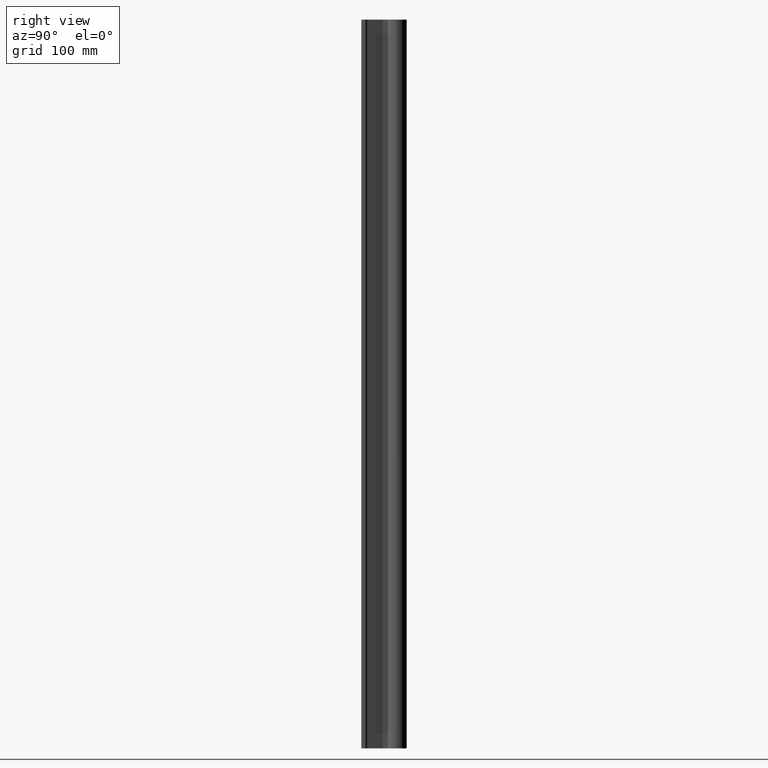
[diagram: clean part render]
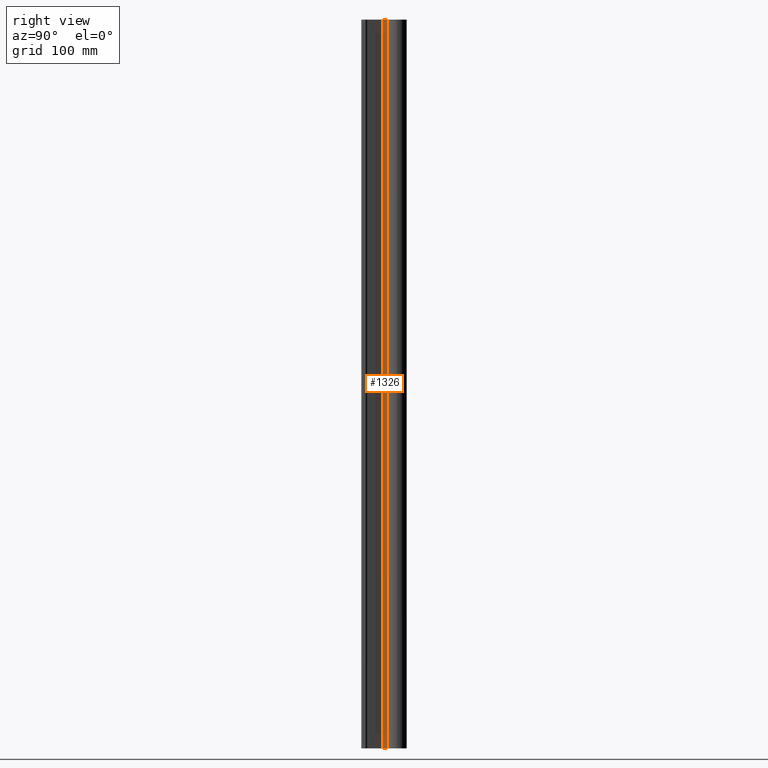
[diagram: same view with one face highlighted and labeled with its STEP entity id]
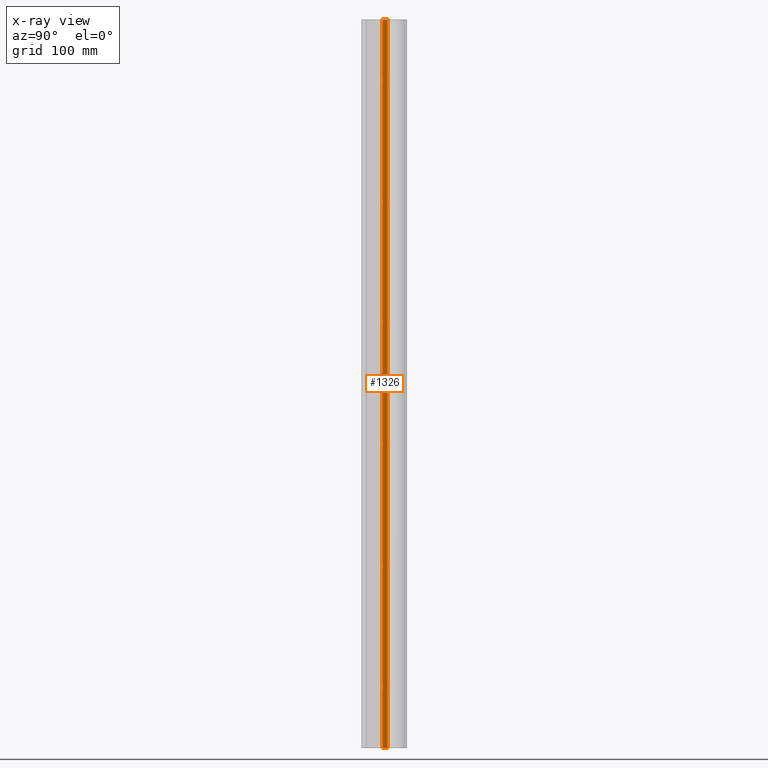
[diagram: x-ray of the same camera — body ghosted, the highlighted face saturated]
A machine part, right view. The second image highlights one B-rep face of the part: STEP entity #1326.
The next image is the same camera in x-ray: the body ghosted, the highlighted face saturated — about 0% of this face is hidden behind the body in this view.
In plain terms, the highlighted planar face has unit normal (1, -0, 0).
Its self-contained STEP definition (entity closure, byte-faithful):
#398 = LINE ( 'NONE', #12966, #9526 ) ;
#638 = CARTESIAN_POINT ( 'NONE',  ( 0.2499999999966968645, 1.305666897899299350, -36.00000000000000000 ) ) ;
#733 = CARTESIAN_POINT ( 'NONE',  ( 0.2499999999966968089, 1.054219864300000475, -38.49573696227415098 ) ) ;
#853 = CARTESIAN_POINT ( 'NONE',  ( 0.2499999999966968089, 1.054219864300000475, -36.00000000000000000 ) ) ;
#960 = ORIENTED_EDGE ( 'NONE', *, *, #5624, .T. ) ;
#1099 = ORIENTED_EDGE ( 'NONE', *, *, #8996, .F. ) ;
#1290 = CARTESIAN_POINT ( 'NONE',  ( 0.2499999999966968089, 1.054219864300000475, 0.000000000000000000 ) ) ;
#1326 = ADVANCED_FACE ( 'NONE', ( #5786 ), #10042, .T. ) ;
#2184 = VERTEX_POINT ( 'NONE', #1290 ) ;
#2258 = DIRECTION ( 'NONE',  ( 0.000000000000000000, 0.000000000000000000, 1.000000000000000000 ) ) ;
#2927 = CARTESIAN_POINT ( 'NONE',  ( 0.2499999999966968089, 1.054219864300000475, 0.000000000000000000 ) ) ;
#3586 = ORIENTED_EDGE ( 'NONE', *, *, #6943, .F. ) ;
#3878 = VECTOR ( 'NONE', #7535, 39.37007874015748143 ) ;
#3893 = EDGE_CURVE ( 'NONE', #2184, #8975, #12569, .T. ) ;
#5624 = EDGE_CURVE ( 'NONE', #6520, #8975, #12898, .T. ) ;
#5786 = FACE_OUTER_BOUND ( 'NONE', #8408, .T. ) ;
#6096 = AXIS2_PLACEMENT_3D ( 'NONE', #733, #11116, #8033 ) ;
#6382 = LINE ( 'NONE', #10784, #10724 ) ;
#6449 = ORIENTED_EDGE ( 'NONE', *, *, #3893, .F. ) ;
#6520 = VERTEX_POINT ( 'NONE', #638 ) ;
#6943 = EDGE_CURVE ( 'NONE', #6520, #12826, #398, .T. ) ;
#7535 = DIRECTION ( 'NONE',  ( 0.000000000000000000, 0.000000000000000000, 1.000000000000000000 ) ) ;
#7683 = DIRECTION ( 'NONE',  ( -1.358063343679013871E-16, -1.000000000000000000, 0.000000000000000000 ) ) ;
#8033 = DIRECTION ( 'NONE',  ( 1.358063343679013871E-16, 1.000000000000000000, 0.000000000000000000 ) ) ;
#8408 = EDGE_LOOP ( 'NONE', ( #3586, #960, #6449, #1099 ) ) ;
#8450 = DIRECTION ( 'NONE',  ( 1.358063343679013871E-16, 1.000000000000000000, 0.000000000000000000 ) ) ;
#8501 = CARTESIAN_POINT ( 'NONE',  ( 0.2499999999966968645, 1.305666897899299350, -38.49573696227415098 ) ) ;
#8975 = VERTEX_POINT ( 'NONE', #12730 ) ;
#8996 = EDGE_CURVE ( 'NONE', #12826, #2184, #6382, .T. ) ;
#9526 = VECTOR ( 'NONE', #7683, 39.37007874015748143 ) ;
#9665 = VECTOR ( 'NONE', #8450, 39.37007874015748143 ) ;
#10042 = PLANE ( 'NONE',  #6096 ) ;
#10724 = VECTOR ( 'NONE', #2258, 39.37007874015748143 ) ;
#10784 = CARTESIAN_POINT ( 'NONE',  ( 0.2499999999966968089, 1.054219864300000475, -38.49573696227415098 ) ) ;
#11116 = DIRECTION ( 'NONE',  ( 1.000000000000000000, -1.358063343679013871E-16, 0.000000000000000000 ) ) ;
#12569 = LINE ( 'NONE', #2927, #9665 ) ;
#12730 = CARTESIAN_POINT ( 'NONE',  ( 0.2499999999966968922, 1.305666897899299350, 0.000000000000000000 ) ) ;
#12826 = VERTEX_POINT ( 'NONE', #853 ) ;
#12898 = LINE ( 'NONE', #8501, #3878 ) ;
#12966 = CARTESIAN_POINT ( 'NONE',  ( 0.2499999999966968089, 1.054219864300000475, -36.00000000000000000 ) ) ;